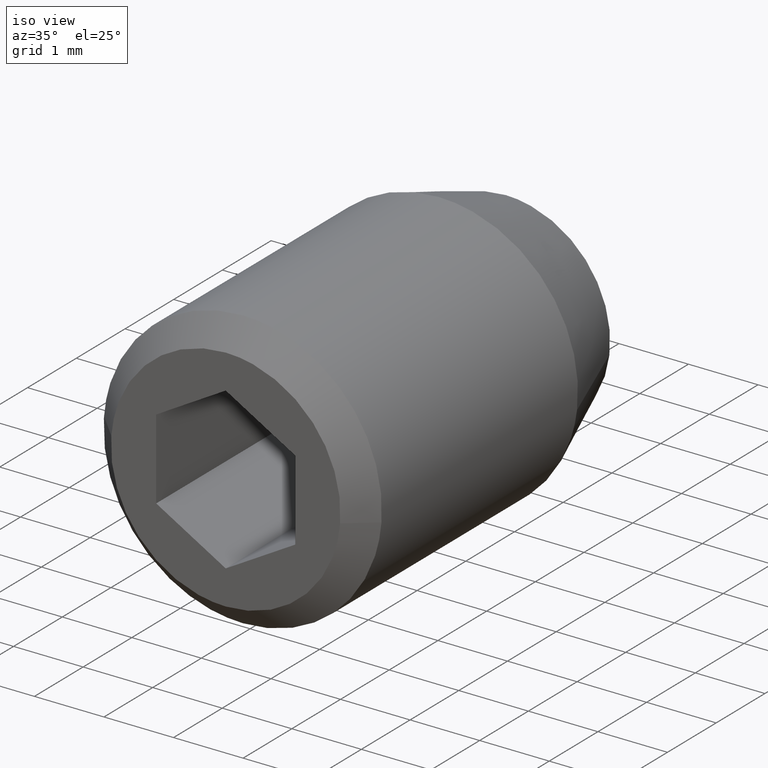
[diagram: clean part render]
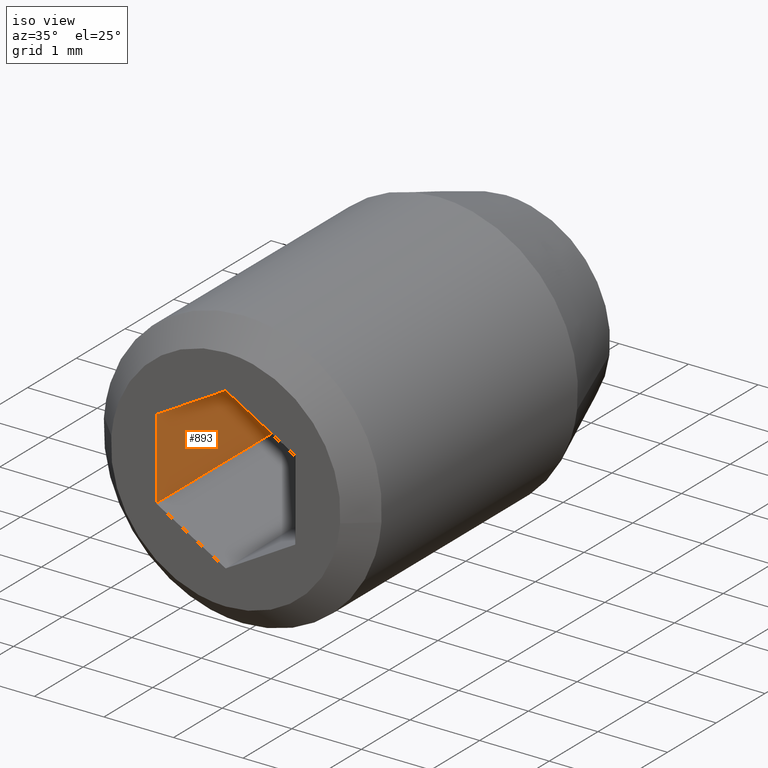
[diagram: same view with one face highlighted and labeled with its STEP entity id]
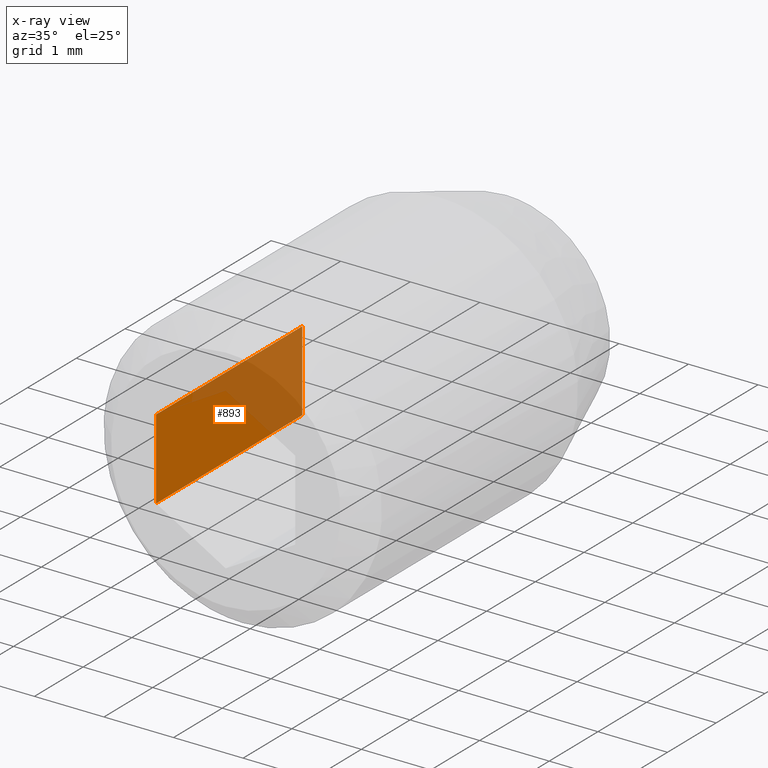
[diagram: x-ray of the same camera — body ghosted, the highlighted face saturated]
A machine part, iso view. The second image highlights one B-rep face of the part: STEP entity #893.
The next image is the same camera in x-ray: the body ghosted, the highlighted face saturated — about 43% of this face is hidden behind the body in this view.
In plain terms, the highlighted face is a freeform B-spline surface patch.
Its self-contained STEP definition (entity closure, byte-faithful):
#735=CARTESIAN_POINT('',(-1.0,-3.499999999999950,0.577350000000000));
#736=VERTEX_POINT('',#735);
#742=CARTESIAN_POINT('',(-1.0,-3.499999999999950,-0.577350000000017));
#743=VERTEX_POINT('',#742);
#744=CARTESIAN_POINT('',(-1.0,-3.499999999999950,0.577350000000000));
#745=CARTESIAN_POINT('',(-1.0,-3.499999999999950,-0.577350000000017));
#746=QUASI_UNIFORM_CURVE('',1,(#744,#745),.UNSPECIFIED.,.F.,.U.);
#747=EDGE_CURVE('',#736,#743,#746,.T.);
#855=CARTESIAN_POINT('',(-1.0,-6.500000000000000,-0.577350000000017));
#856=VERTEX_POINT('',#855);
#864=CARTESIAN_POINT('',(-1.0,-3.499999999999950,-0.577350000000017));
#865=CARTESIAN_POINT('',(-1.0,-6.500000000000000,-0.577350000000017));
#866=QUASI_UNIFORM_CURVE('',1,(#864,#865),.UNSPECIFIED.,.F.,.U.);
#867=EDGE_CURVE('',#743,#856,#866,.T.);
#872=CARTESIAN_POINT('',(-1.0,-6.649849994185422,-0.635027284440980));
#873=CARTESIAN_POINT('',(-1.0,-6.649849994185422,0.635027294764785));
#874=CARTESIAN_POINT('',(-1.0,-3.350149925348259,-0.635027284440980));
#875=CARTESIAN_POINT('',(-1.0,-3.350149925348259,0.635027294764785));
#876=B_SPLINE_SURFACE_WITH_KNOTS('',1,1,((#872,#874),(#873,#875)),.UNSPECIFIED.,.F.,.F.,.U.,(2,2),(2,2),(0.041708319303021,0.958291688147560),(0.0,3.299700068837162),.UNSPECIFIED.);
#877=CARTESIAN_POINT('',(-1.0,-6.500000000000000,0.577350000000000));
#878=VERTEX_POINT('',#877);
#879=CARTESIAN_POINT('',(-1.0,-6.500000000000000,0.577350000000000));
#880=CARTESIAN_POINT('',(-1.0,-6.500000000000000,-0.577350000000017));
#881=QUASI_UNIFORM_CURVE('',1,(#879,#880),.UNSPECIFIED.,.F.,.U.);
#882=EDGE_CURVE('',#878,#856,#881,.T.);
#883=ORIENTED_EDGE('',*,*,#882,.T.);
#884=ORIENTED_EDGE('',*,*,#867,.F.);
#885=ORIENTED_EDGE('',*,*,#747,.F.);
#886=CARTESIAN_POINT('',(-1.0,-3.499999999999950,0.577350000000000));
#887=CARTESIAN_POINT('',(-1.0,-6.500000000000000,0.577350000000000));
#888=QUASI_UNIFORM_CURVE('',1,(#886,#887),.UNSPECIFIED.,.F.,.U.);
#889=EDGE_CURVE('',#736,#878,#888,.T.);
#890=ORIENTED_EDGE('',*,*,#889,.T.);
#891=EDGE_LOOP('',(#883,#884,#885,#890));
#892=FACE_OUTER_BOUND('',#891,.T.);
#893=ADVANCED_FACE('',(#892),#876,.F.);